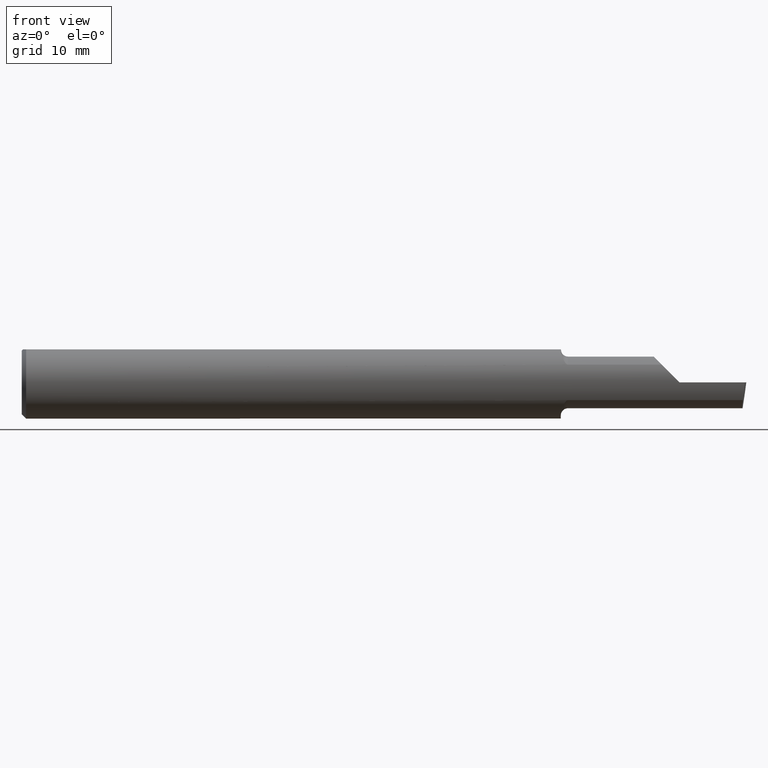
[diagram: clean part render]
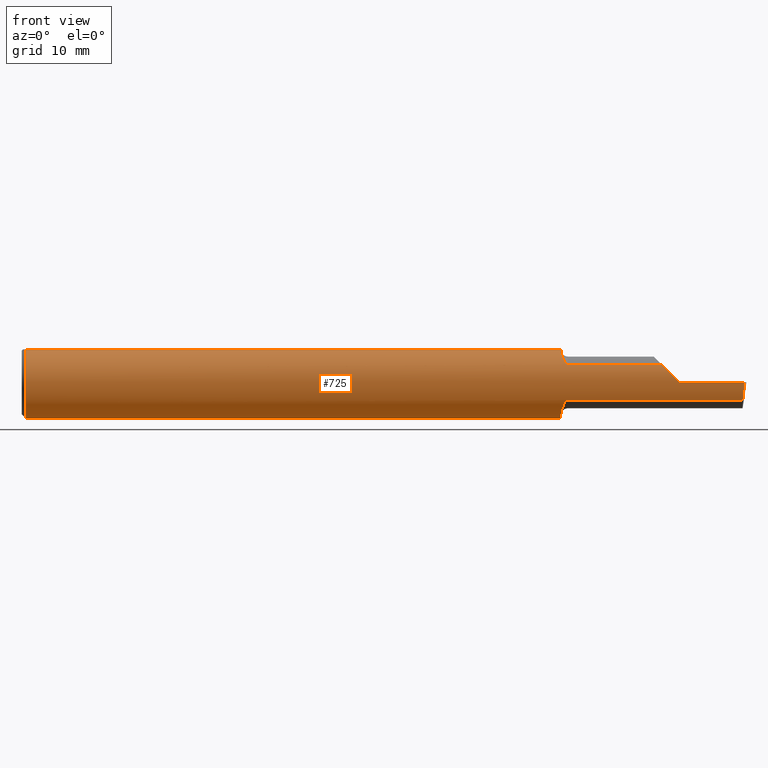
[diagram: same view with one face highlighted and labeled with its STEP entity id]
A machine part, front view. The second image highlights one B-rep face of the part: STEP entity #725.
In plain terms, the highlighted cylindrical surface (edge-blend (fillet) strip) has radius 3.1712 mm, axis along (-1, -0, -0).
Its self-contained STEP definition (entity closure, byte-faithful):
#2 = DIRECTION ( 'NONE',  ( 0.0000000000000000000, 0.0000000000000000000, 1.000000000000000000 ) ) ;
#4 = ORIENTED_EDGE ( 'NONE', *, *, #208, .F. ) ;
#8 = CARTESIAN_POINT ( 'NONE',  ( 1.872671163500630787, -0.1022596512740081426, 0.07170602318513177864 ) ) ;
#10 = CARTESIAN_POINT ( 'NONE',  ( 1.860398955714088309, -0.06414339738381671929, 0.1073503907433057680 ) ) ;
#13 = DIRECTION ( 'NONE',  ( -1.000000000000000000, -0.0000000000000000000, -0.0000000000000000000 ) ) ;
#18 = EDGE_CURVE ( 'NONE', #179, #134, #463, .T. ) ;
#26 = AXIS2_PLACEMENT_3D ( 'NONE', #498, #722, #149 ) ;
#28 = CARTESIAN_POINT ( 'NONE',  ( 0.0000000000000000000, 0.05124158467494922820, 0.1138500000000000345 ) ) ;
#29 = CARTESIAN_POINT ( 'NONE',  ( 0.01499999999999999424, 0.0000000000000000000, -0.1248500000000000026 ) ) ;
#33 = VERTEX_POINT ( 'NONE', #706 ) ;
#37 = CARTESIAN_POINT ( 'NONE',  ( 0.0000000000000000000, -0.05124158467494919350, 0.1138500000000000345 ) ) ;
#38 = CARTESIAN_POINT ( 'NONE',  ( 2.208790356734260829, -0.1088159090909091575, 0.06120964326573868214 ) ) ;
#69 = CARTESIAN_POINT ( 'NONE',  ( 1.866367198475050726, -0.09170680217278601165, 0.08501141308632326199 ) ) ;
#70 = VERTEX_POINT ( 'NONE', #38 ) ;
#78 = VERTEX_POINT ( 'NONE', #637 ) ;
#79 = VERTEX_POINT ( 'NONE', #321 ) ;
#85 = CARTESIAN_POINT ( 'NONE',  ( 2.084999999999999964, -0.1088159090909091853, -0.06120964326573867520 ) ) ;
#93 = EDGE_LOOP ( 'NONE', ( #619, #311, #392, #293, #473, #523, #408, #304, #314, #435, #4, #575 ) ) ;
#97 = VECTOR ( 'NONE', #546, 39.37007874015748143 ) ;
#105 = EDGE_CURVE ( 'NONE', #33, #78, #279, .T. ) ;
#108 = CARTESIAN_POINT ( 'NONE',  ( 1.859999999999999876, 0.05124158467494921432, 0.1138500000000000206 ) ) ;
#120 = CARTESIAN_POINT ( 'NONE',  ( 2.270000000000000018, -0.1248500000000000165, 2.816687638038912303E-17 ) ) ;
#127 = EDGE_CURVE ( 'NONE', #238, #192, #697, .T. ) ;
#134 = VERTEX_POINT ( 'NONE', #29 ) ;
#136 = EDGE_CURVE ( 'NONE', #564, #238, #516, .T. ) ;
#141 = CARTESIAN_POINT ( 'NONE',  ( 1.885000000000000009, -0.1088159090909094073, -0.06120964326573841152 ) ) ;
#144 = CARTESIAN_POINT ( 'NONE',  ( 4.111069666048746882E-31, -0.1248499999999999888, 9.802154982235641300E-16 ) ) ;
#145 = CARTESIAN_POINT ( 'NONE',  ( 1.878584160803692171, -0.1072016464447192174, -0.06400548237000602825 ) ) ;
#149 = DIRECTION ( 'NONE',  ( 0.0000000000000000000, 0.0000000000000000000, -1.000000000000000000 ) ) ;
#173 = EDGE_CURVE ( 'NONE', #530, #70, #497, .T. ) ;
#178 = CARTESIAN_POINT ( 'NONE',  ( 1.874298474000562376, -0.1041086701288378991, 0.06897617952030507538 ) ) ;
#179 = VERTEX_POINT ( 'NONE', #267 ) ;
#182 = CARTESIAN_POINT ( 'NONE',  ( 1.877431632364402914, -0.1064782986023078554, 0.06520809716638645281 ) ) ;
#191 = CARTESIAN_POINT ( 'NONE',  ( 1.859999999999999654, -0.06435233443826811339, -0.1079743783864397511 ) ) ;
#192 = VERTEX_POINT ( 'NONE', #716 ) ;
#200 = CARTESIAN_POINT ( 'NONE',  ( 1.872652750757541673, -0.1022351105670218224, -0.07173965961731906815 ) ) ;
#206 = VECTOR ( 'NONE', #555, 39.37007874015748143 ) ;
#208 = EDGE_CURVE ( 'NONE', #192, #702, #525, .T. ) ;
#217 = AXIS2_PLACEMENT_3D ( 'NONE', #349, #561, #605 ) ;
#232 = DIRECTION ( 'NONE',  ( 0.0000000000000000000, 0.0000000000000000000, 1.000000000000000000 ) ) ;
#238 = VERTEX_POINT ( 'NONE', #515 ) ;
#245 = LINE ( 'NONE', #37, #643 ) ;
#246 = CIRCLE ( 'NONE', #319, 0.1248500000000000026 ) ;
#260 = DIRECTION ( 'NONE',  ( -1.000000000000000000, -0.0000000000000000000, -0.0000000000000000000 ) ) ;
#267 = CARTESIAN_POINT ( 'NONE',  ( 0.01499999999999999424, 0.05124158467494922820, 0.1138500000000000345 ) ) ;
#279 = LINE ( 'NONE', #144, #97 ) ;
#284 = CARTESIAN_POINT ( 'NONE',  ( 0.01499999999999999424, 0.0000000000000000000, 0.0000000000000000000 ) ) ;
#293 = ORIENTED_EDGE ( 'NONE', *, *, #428, .T. ) ;
#295 = CARTESIAN_POINT ( 'NONE',  ( 2.487716879513912627, -0.1088159090909091853, -0.06120964326573867520 ) ) ;
#300 = CARTESIAN_POINT ( 'NONE',  ( 0.01499999999999999424, 0.0000000000000000000, 0.0000000000000000000 ) ) ;
#303 = CARTESIAN_POINT ( 'NONE',  ( 2.248439214200177449, -0.1248500000000000026, 0.02156078579982230806 ) ) ;
#304 = ORIENTED_EDGE ( 'NONE', *, *, #370, .F. ) ;
#311 = ORIENTED_EDGE ( 'NONE', *, *, #331, .T. ) ;
#314 = ORIENTED_EDGE ( 'NONE', *, *, #18, .F. ) ;
#315 = CARTESIAN_POINT ( 'NONE',  ( 2.227582158957104319, -0.1193864177600010984, 0.04241784104289508112 ) ) ;
#319 = AXIS2_PLACEMENT_3D ( 'NONE', #300, #13, #232 ) ;
#321 = CARTESIAN_POINT ( 'NONE',  ( 0.01499999999999998730, -0.05124158467494919350, 0.1138500000000000345 ) ) ;
#328 = CARTESIAN_POINT ( 'NONE',  ( 1.868397821753970067, -0.09628495161689394621, -0.07975604660947201163 ) ) ;
#331 = EDGE_CURVE ( 'NONE', #564, #33, #542, .T. ) ;
#342 = EDGE_CURVE ( 'NONE', #705, #530, #476, .T. ) ;
#343 = DIRECTION ( 'NONE',  ( -1.000000000000000000, -0.0000000000000000000, -0.0000000000000000000 ) ) ;
#347 = CYLINDRICAL_SURFACE ( 'NONE', #217, 0.1248500000000000026 ) ;
#349 = CARTESIAN_POINT ( 'NONE',  ( 0.0000000000000000000, 0.0000000000000000000, 0.0000000000000000000 ) ) ;
#358 = CARTESIAN_POINT ( 'NONE',  ( 1.861949480984350203, -0.07596136197082531405, 0.09933958580654494996 ) ) ;
#359 = CARTESIAN_POINT ( 'NONE',  ( 1.860007259122735679, -0.05787968516969619476, 0.1108623250892746270 ) ) ;
#363 = CARTESIAN_POINT ( 'NONE',  ( 1.863123628621569328, -0.08156933505717120503, 0.09478144068341090578 ) ) ;
#370 = EDGE_CURVE ( 'NONE', #134, #79, #246, .T. ) ;
#379 = CARTESIAN_POINT ( 'NONE',  ( 1.883136503623038083, -0.1088159090909093518, -0.06120964326573836989 ) ) ;
#392 = ORIENTED_EDGE ( 'NONE', *, *, #105, .T. ) ;
#396 = VECTOR ( 'NONE', #397, 39.37007874015748143 ) ;
#397 = DIRECTION ( 'NONE',  ( 1.000000000000000000, 0.0000000000000000000, 0.0000000000000000000 ) ) ;
#408 = ORIENTED_EDGE ( 'NONE', *, *, #591, .T. ) ;
#409 = CARTESIAN_POINT ( 'NONE',  ( 1.881429951084914398, -0.1083820298415335281, 0.06198549150327717361 ) ) ;
#416 = CARTESIAN_POINT ( 'NONE',  ( 1.868377233828254491, -0.09625857022060846369, 0.07979273349069959664 ) ) ;
#428 = EDGE_CURVE ( 'NONE', #78, #70, #660, .T. ) ;
#435 = ORIENTED_EDGE ( 'NONE', *, *, #526, .T. ) ;
#463 = CIRCLE ( 'NONE', #667, 0.1248500000000000026 ) ;
#473 = ORIENTED_EDGE ( 'NONE', *, *, #173, .F. ) ;
#476 = B_SPLINE_CURVE_WITH_KNOTS ( 'NONE', 3,
 ( #680, #359, #10, #358, #363, #69, #416, #8, #178, #182, #529, #409, #522, #688 ),
 .UNSPECIFIED., .F., .F.,
 ( 4, 2, 2, 2, 2, 2, 4 ),
 ( 4.804672440294539514E-07, 0.0005473133578846858718, 0.001094146248525342284, 0.001640979139165998912, 0.001914395584486326901, 0.002051103807146484933, 0.002187812029806642748 ),
 .UNSPECIFIED. ) ;
#481 = CARTESIAN_POINT ( 'NONE',  ( 2.208790356734260829, -0.1088159090909091575, 0.06120964326573868214 ) ) ;
#492 = CARTESIAN_POINT ( 'NONE',  ( 1.885000000000000009, -0.1088159090909094073, 0.06120964326573841846 ) ) ;
#497 = LINE ( 'NONE', #723, #396 ) ;
#498 = CARTESIAN_POINT ( 'NONE',  ( 1.859999999999999876, 0.0000000000000000000, 0.0000000000000000000 ) ) ;
#500 = CARTESIAN_POINT ( 'NONE',  ( 1.860000097795984519, -0.05124158467554382895, 0.1138500000000000345 ) ) ;
#515 = CARTESIAN_POINT ( 'NONE',  ( 1.885000000000000009, -0.1088159090909094073, -0.06120964326573841152 ) ) ;
#516 = LINE ( 'NONE', #85, #206 ) ;
#519 = CARTESIAN_POINT ( 'NONE',  ( 2.492166948426750128, -0.1248500000000000304, -0.02156078579982240867 ) ) ;
#522 = CARTESIAN_POINT ( 'NONE',  ( 1.883151621368557294, -0.1088159090914120469, 0.06120964326484486240 ) ) ;
#523 = ORIENTED_EDGE ( 'NONE', *, *, #342, .F. ) ;
#525 = CIRCLE ( 'NONE', #26, 0.1248500000000000026 ) ;
#526 = EDGE_CURVE ( 'NONE', #179, #702, #710, .T. ) ;
#527 = CARTESIAN_POINT ( 'NONE',  ( 2.494815187529301426, -0.1248500000000000304, -6.610128768667490488E-17 ) ) ;
#529 = CARTESIAN_POINT ( 'NONE',  ( 1.878607476457615277, -0.1072127130250408594, 0.06398671514685011497 ) ) ;
#530 = VERTEX_POINT ( 'NONE', #492 ) ;
#532 = FACE_OUTER_BOUND ( 'NONE', #93, .T. ) ;
#533 = DIRECTION ( 'NONE',  ( 1.000000000000000000, 0.0000000000000000000, 0.0000000000000000000 ) ) ;
#541 = CARTESIAN_POINT ( 'NONE',  ( 2.487716879513912627, -0.1088159090909091853, -0.06120964326573867520 ) ) ;
#542 =( BOUNDED_CURVE ( )  B_SPLINE_CURVE ( 3, ( #295, #682, #519, #527 ),
 .UNSPECIFIED., .F., .T. ) 
 B_SPLINE_CURVE_WITH_KNOTS ( ( 4, 4 ),
 ( 0.8483525745957783970, 1.360746882514727085 ),
 .UNSPECIFIED. ) 
 CURVE ( )  GEOMETRIC_REPRESENTATION_ITEM ( )  RATIONAL_B_SPLINE_CURVE ( ( 1.000000000000000000, 0.9782404171696015283, 0.9782404171696015283, 1.000000000000000000 ) ) 
 REPRESENTATION_ITEM ( '' )  );
#543 = CARTESIAN_POINT ( 'NONE',  ( 1.881430773366643994, -0.1083837666170490016, -0.06198269038833977701 ) ) ;
#546 = DIRECTION ( 'NONE',  ( -1.000000000000000000, -0.0000000000000000000, -0.0000000000000000000 ) ) ;
#555 = DIRECTION ( 'NONE',  ( -1.000000000000000000, -0.0000000000000000000, -0.0000000000000000000 ) ) ;
#561 = DIRECTION ( 'NONE',  ( -1.000000000000000000, -0.0000000000000000000, -0.0000000000000000000 ) ) ;
#564 = VERTEX_POINT ( 'NONE', #541 ) ;
#568 = VECTOR ( 'NONE', #533, 39.37007874015748143 ) ;
#575 = ORIENTED_EDGE ( 'NONE', *, *, #127, .F. ) ;
#591 = EDGE_CURVE ( 'NONE', #705, #79, #245, .T. ) ;
#596 = CARTESIAN_POINT ( 'NONE',  ( 1.877418472017428730, -0.1064706388662829406, -0.06522095769404967491 ) ) ;
#600 = CARTESIAN_POINT ( 'NONE',  ( 1.861502585305458979, -0.07647633808930123789, -0.09967851947582055672 ) ) ;
#605 = DIRECTION ( 'NONE',  ( 0.0000000000000000000, 0.0000000000000000000, 1.000000000000000000 ) ) ;
#619 = ORIENTED_EDGE ( 'NONE', *, *, #136, .F. ) ;
#637 = CARTESIAN_POINT ( 'NONE',  ( 2.270000000000000018, -0.1248500000000000165, 2.816687638038912303E-17 ) ) ;
#643 = VECTOR ( 'NONE', #260, 39.37007874015748143 ) ;
#648 = CARTESIAN_POINT ( 'NONE',  ( 1.874260533375047277, -0.1040753176265712121, -0.06902783361385343708 ) ) ;
#660 =( BOUNDED_CURVE ( )  B_SPLINE_CURVE ( 3, ( #120, #303, #315, #481 ),
 .UNSPECIFIED., .F., .T. ) 
 B_SPLINE_CURVE_WITH_KNOTS ( ( 4, 4 ),
 ( 4.712388980384689674, 5.224783288303640028 ),
 .UNSPECIFIED. ) 
 CURVE ( )  GEOMETRIC_REPRESENTATION_ITEM ( )  RATIONAL_B_SPLINE_CURVE ( ( 1.000000000000000000, 0.9782404171696015283, 0.9782404171696015283, 1.000000000000000000 ) ) 
 REPRESENTATION_ITEM ( '' )  );
#667 = AXIS2_PLACEMENT_3D ( 'NONE', #284, #343, #2 ) ;
#680 = CARTESIAN_POINT ( 'NONE',  ( 1.860000097795984519, -0.05124158467554382895, 0.1138500000000000345 ) ) ;
#682 = CARTESIAN_POINT ( 'NONE',  ( 2.489748215127381759, -0.1193864177600011400, -0.04241784104289508806 ) ) ;
#688 = CARTESIAN_POINT ( 'NONE',  ( 1.885000000000000009, -0.1088159090909094073, 0.06120964326573841846 ) ) ;
#697 = B_SPLINE_CURVE_WITH_KNOTS ( 'NONE', 3,
 ( #141, #379, #543, #145, #596, #648, #200, #328, #709, #600, #191, #700 ),
 .UNSPECIFIED., .F., .F.,
 ( 4, 2, 2, 2, 2, 4 ),
 ( 1.958506483896989660E-07, 0.0001392669359846144715, 0.0002783380213208392360, 0.0005564801919932887107, 0.001112764533338186576, 0.002225333216027986644 ),
 .UNSPECIFIED. ) ;
#700 = CARTESIAN_POINT ( 'NONE',  ( 1.859999999999999876, -0.05106022727272742368, -0.1139314517192571569 ) ) ;
#702 = VERTEX_POINT ( 'NONE', #108 ) ;
#705 = VERTEX_POINT ( 'NONE', #500 ) ;
#706 = CARTESIAN_POINT ( 'NONE',  ( 2.494815187529301426, -0.1248500000000000304, -6.610128768667490488E-17 ) ) ;
#709 = CARTESIAN_POINT ( 'NONE',  ( 1.866341859756229571, -0.09164079654472243042, -0.08508064213884940219 ) ) ;
#710 = LINE ( 'NONE', #28, #568 ) ;
#716 = CARTESIAN_POINT ( 'NONE',  ( 1.859999999999999876, -0.05106022727272742368, -0.1139314517192571569 ) ) ;
#722 = DIRECTION ( 'NONE',  ( 1.000000000000000000, 0.0000000000000000000, 0.0000000000000000000 ) ) ;
#723 = CARTESIAN_POINT ( 'NONE',  ( 2.084999999999999964, -0.1088159090909091853, 0.06120964326573867520 ) ) ;
#725 = ADVANCED_FACE ( 'NONE', ( #532 ), #347, .T. ) ;